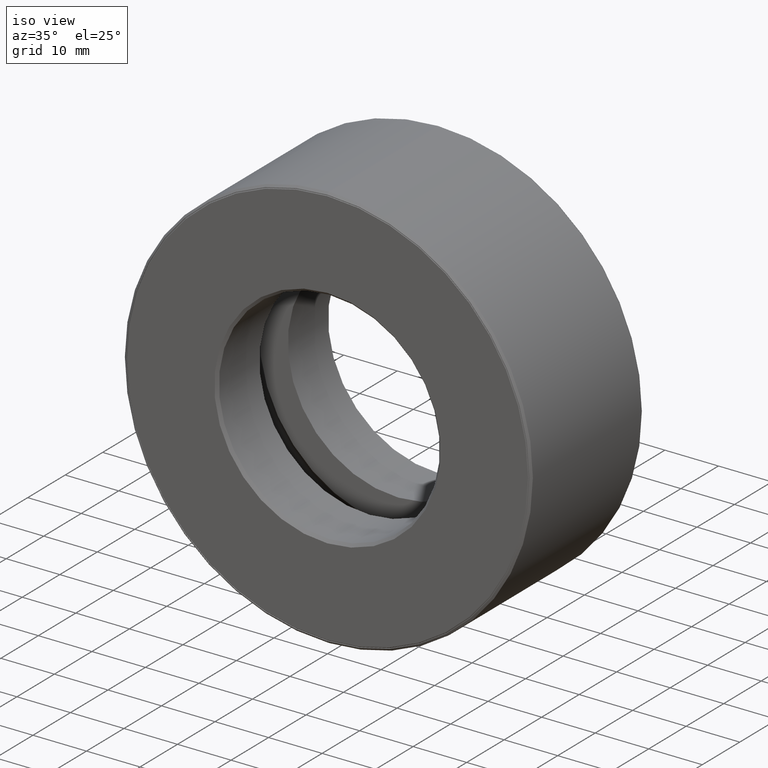
[diagram: clean part render]
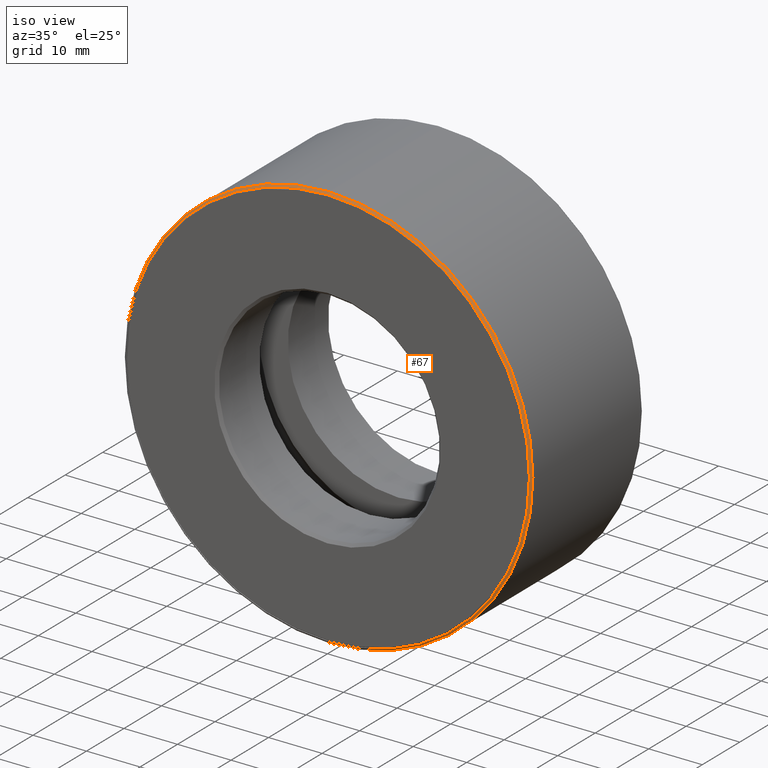
[diagram: same view with one face highlighted and labeled with its STEP entity id]
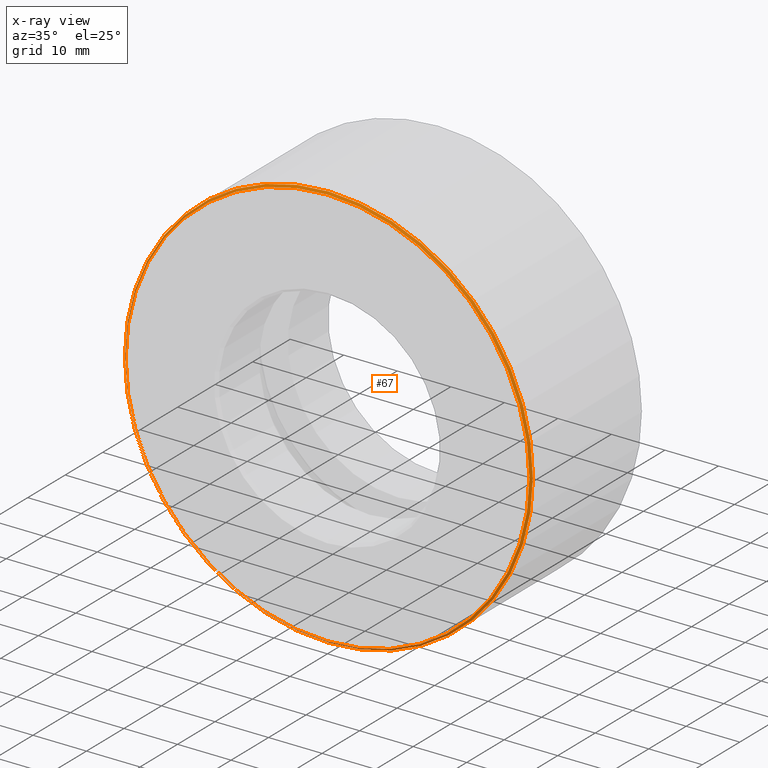
[diagram: x-ray of the same camera — body ghosted, the highlighted face saturated]
A machine part, iso view. The second image highlights one B-rep face of the part: STEP entity #67.
The next image is the same camera in x-ray: the body ghosted, the highlighted face saturated — about 0% of this face is hidden behind the body in this view.
In plain terms, the highlighted conical surface has half-angle 45 deg.
Its self-contained STEP definition (entity closure, byte-faithful):
#21 = CARTESIAN_POINT ( 'NONE',  ( 0.0000000000000000000, 0.01499999999999984000, 1.499999999999999800 ) ) ;
#27 = EDGE_CURVE ( 'NONE', #128, #128, #433, .T. ) ;
#61 = AXIS2_PLACEMENT_3D ( 'NONE', #77, #266, #357 ) ;
#67 = ADVANCED_FACE ( 'NONE', ( #265, #417 ), #296, .T. ) ;
#75 = DIRECTION ( 'NONE',  ( -0.0000000000000000000, 1.000000000000000000, -0.0000000000000000000 ) ) ;
#77 = CARTESIAN_POINT ( 'NONE',  ( 0.0000000000000000000, -8.323599355695802500E-017, 0.0000000000000000000 ) ) ;
#78 = DIRECTION ( 'NONE',  ( -0.0000000000000000000, 1.000000000000000000, -0.0000000000000000000 ) ) ;
#88 = EDGE_LOOP ( 'NONE', ( #367 ) ) ;
#128 = VERTEX_POINT ( 'NONE', #21 ) ;
#203 = ORIENTED_EDGE ( 'NONE', *, *, #27, .F. ) ;
#240 = CIRCLE ( 'NONE', #289, 1.485000000000000100 ) ;
#241 = EDGE_LOOP ( 'NONE', ( #203 ) ) ;
#255 = CARTESIAN_POINT ( 'NONE',  ( 0.0000000000000000000, -8.323599355695802500E-017, 0.0000000000000000000 ) ) ;
#265 = FACE_OUTER_BOUND ( 'NONE', #241, .T. ) ;
#266 = DIRECTION ( 'NONE',  ( -0.0000000000000000000, 1.000000000000000000, -0.0000000000000000000 ) ) ;
#289 = AXIS2_PLACEMENT_3D ( 'NONE', #255, #78, #580 ) ;
#296 = CONICAL_SURFACE ( 'NONE', #61, 1.485000000000000100, 0.7853981633974409500 ) ;
#357 = DIRECTION ( 'NONE',  ( 0.0000000000000000000, 0.0000000000000000000, 1.000000000000000000 ) ) ;
#367 = ORIENTED_EDGE ( 'NONE', *, *, #602, .T. ) ;
#417 = FACE_BOUND ( 'NONE', #88, .T. ) ;
#433 = CIRCLE ( 'NONE', #472, 1.499999999999999800 ) ;
#445 = DIRECTION ( 'NONE',  ( 0.0000000000000000000, 0.0000000000000000000, 1.000000000000000000 ) ) ;
#472 = AXIS2_PLACEMENT_3D ( 'NONE', #539, #75, #445 ) ;
#539 = CARTESIAN_POINT ( 'NONE',  ( 0.0000000000000000000, 0.01499999999999984000, 0.0000000000000000000 ) ) ;
#580 = DIRECTION ( 'NONE',  ( 0.0000000000000000000, 0.0000000000000000000, 1.000000000000000000 ) ) ;
#596 = CARTESIAN_POINT ( 'NONE',  ( 0.0000000000000000000, -8.323599355695802500E-017, 1.485000000000000100 ) ) ;
#602 = EDGE_CURVE ( 'NONE', #606, #606, #240, .T. ) ;
#606 = VERTEX_POINT ( 'NONE', #596 ) ;